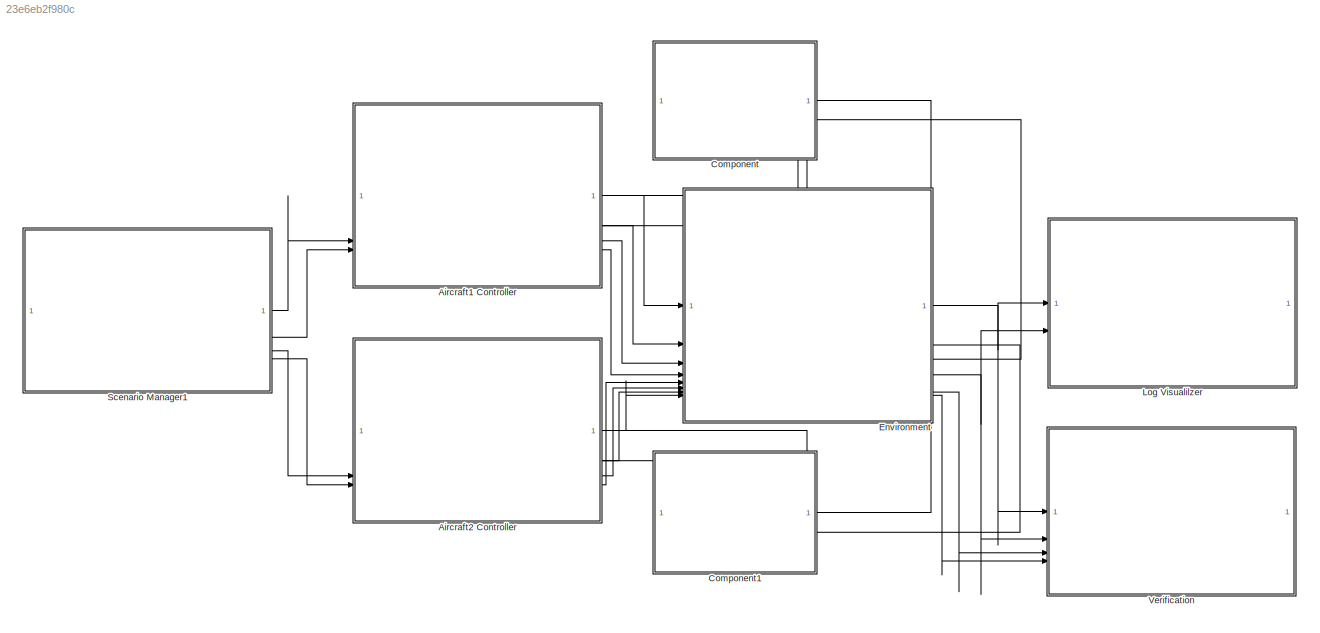
MODEL slx_23e6eb2f980c
KIND model
CONFIG AbsTol = auto
CONFIG EnableMultiTasking = off
CONFIG FixedStep = 0.1
CONFIG MaxStep = auto
CONFIG MinStep = auto
CONFIG RelTol = 1e-3
CONFIG SampleTimeConstraint = Unconstrained
CONFIG SolverName = FixedStepAuto
CONFIG StartTime = 0.0
CONFIG StopTime = 100.0
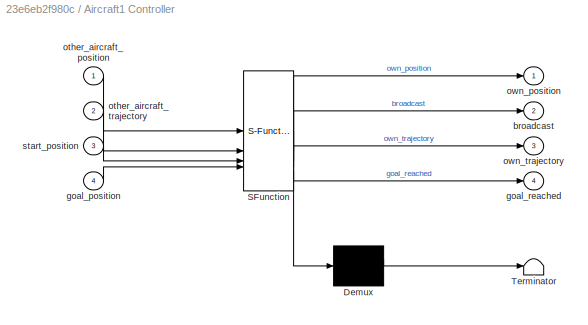
BLOCK [SubSystem] Aircraft1 Controller
  ErrorFcn = Stateflow.Translate.translate
  PermitHierarchicalResolution = ExplicitOnly
  PortSchema = {"entries":[{"content":{"headerSize":26,"margin":15,"minimumSpacing":25,"sides":[{"content":{"connectorIds":["In3","In4"]},"type":"ConnectorPlacement.EquallySpacedRectSide","uuid":"1f55804f-7089-4bd3-b638-e4b9c8b42ca4"},{"content":{"connectorIds":["In1","In2","Out1","Out2","Out3","Out4"],"side":"RIGHT"},"type":"ConnectorPlacement.EquallySpacedRectSide","uuid":"b3c2471c-8380-46f0-98ab-243070185840"...<+309ch>
  SFBlockType = Chart
  TreatAsAtomicUnit = on
BLOCK [Demux] Aircraft1 Controller/ Demux 
  Outputs = 1
BLOCK [S-Function] Aircraft1 Controller/ SFunction 
  EnableBusSupport = on
  FunctionName = sf_sfun
  PortCounts = [4 5]
  SFcnIsStateOwnerBlock = off
  SFunctionDeploymentMode = off
  Tag = Stateflow S-Function 3
BLOCK [Terminator] Aircraft1 Controller/ Terminator 
BLOCK [Outport] Aircraft1 Controller/broadcast
  Port = 2
BLOCK [Inport] Aircraft1 Controller/goal_position
  Port = 4
BLOCK [Outport] Aircraft1 Controller/goal_reached
  Port = 4
BLOCK [Inport] Aircraft1 Controller/other_aircraft_position
BLOCK [Inport] Aircraft1 Controller/other_aircraft_trajectory
  Port = 2
BLOCK [Outport] Aircraft1 Controller/own_position
BLOCK [Outport] Aircraft1 Controller/own_trajectory
  Port = 3
BLOCK [Inport] Aircraft1 Controller/start_position
  Port = 3
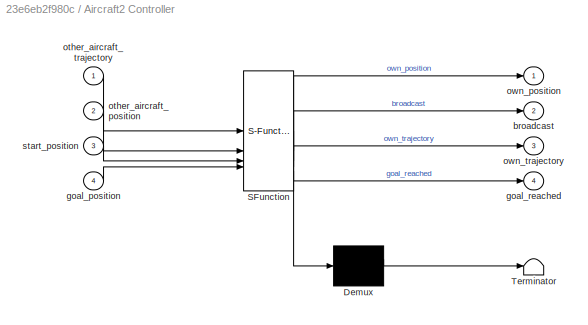
BLOCK [SubSystem] Aircraft2 Controller
  ErrorFcn = Stateflow.Translate.translate
  PermitHierarchicalResolution = ExplicitOnly
  PortSchema = {"entries":[{"content":{"headerSize":26,"margin":15,"minimumSpacing":25,"sides":[{"content":{"connectorIds":["In4","In3"]},"type":"ConnectorPlacement.EquallySpacedRectSide","uuid":"1f55804f-7089-4bd3-b638-e4b9c8b42ca4"},{"content":{"connectorIds":["Out4","Out3","Out2","Out1","In1","In2"],"side":"RIGHT"},"type":"ConnectorPlacement.EquallySpacedRectSide","uuid":"b3c2471c-8380-46f0-98ab-243070185840"...<+309ch>
  SFBlockType = Chart
  TreatAsAtomicUnit = on
BLOCK [Demux] Aircraft2 Controller/ Demux 
  Outputs = 1
BLOCK [S-Function] Aircraft2 Controller/ SFunction 
  EnableBusSupport = on
  FunctionName = sf_sfun
  PortCounts = [4 5]
  SFcnIsStateOwnerBlock = off
  SFunctionDeploymentMode = off
  Tag = Stateflow S-Function 1
BLOCK [Terminator] Aircraft2 Controller/ Terminator 
BLOCK [Outport] Aircraft2 Controller/broadcast
  Port = 2
BLOCK [Inport] Aircraft2 Controller/goal_position
  Port = 4
BLOCK [Outport] Aircraft2 Controller/goal_reached
  Port = 4
BLOCK [Inport] Aircraft2 Controller/other_aircraft_position
  Port = 2
BLOCK [Inport] Aircraft2 Controller/other_aircraft_trajectory
BLOCK [Outport] Aircraft2 Controller/own_position
BLOCK [Outport] Aircraft2 Controller/own_trajectory
  Port = 3
BLOCK [Inport] Aircraft2 Controller/start_position
  Port = 3
BLOCK [ModelReference] Component
  ModelNameDialog = MemoryBlock.slx
  ModelReferenceVersion = 1.4
  PortSchema = {"entries":[{"content":{"headerSize":38,"margin":15,"minimumSpacing":25,"sides":[{"content":{"connectorIds":["Out1","Out2"]},"type":"ConnectorPlacement.EquallySpacedRectSide","uuid":"1f55804f-7089-4bd3-b638-e4b9c8b42ca4"},{"content":{"connectorIds":["In1","In2"],"side":"RIGHT"},"type":"ConnectorPlacement.EquallySpacedRectSide","uuid":"b3c2471c-8380-46f0-98ab-243070185840"},{"content":{"side":"TOP"...<+409ch>
BLOCK [ModelReference] Component1
  ModelNameDialog = MemoryBlock
  ModelReferenceVersion = 1.4
  PortSchema = {"entries":[{"content":{"headerSize":38,"margin":15,"minimumSpacing":25,"sides":[{"content":{"connectorIds":["Out2","Out1"]},"type":"ConnectorPlacement.EquallySpacedRectSide","uuid":"1f55804f-7089-4bd3-b638-e4b9c8b42ca4"},{"content":{"connectorIds":["In2","In1"],"side":"RIGHT"},"type":"ConnectorPlacement.EquallySpacedRectSide","uuid":"b3c2471c-8380-46f0-98ab-243070185840"},{"content":{"side":"TOP"...<+409ch>
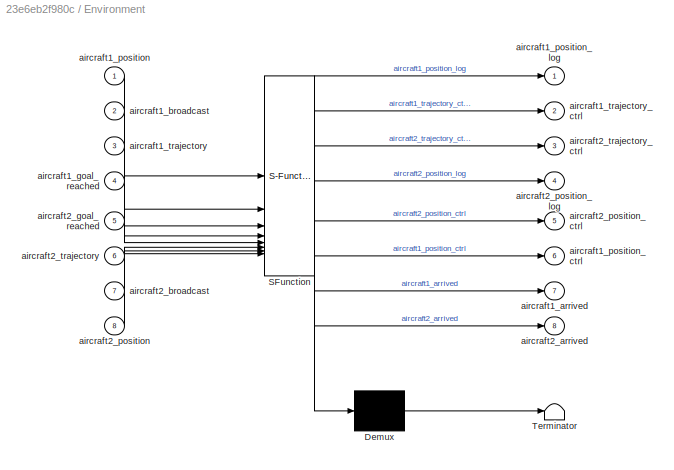
BLOCK [SubSystem] Environment
  ErrorFcn = Stateflow.Translate.translate
  PermitHierarchicalResolution = ExplicitOnly
  PortSchema = {"entries":[{"content":{"headerSize":26,"margin":15,"minimumSpacing":25,"sides":[{"content":{"connectorIds":["In1","In2","In3","In4","In5","In6","In7","In8"]},"type":"ConnectorPlacement.EquallySpacedRectSide","uuid":"1f55804f-7089-4bd3-b638-e4b9c8b42ca4"},{"content":{"connectorIds":["Out1","Out4","Out7","Out8"],"side":"RIGHT"},"type":"ConnectorPlacement.EquallySpacedRectSide","uuid":"b3c2471c-8380...<+521ch>
  SFBlockType = Chart
  TreatAsAtomicUnit = on
BLOCK [Demux] Environment/ Demux 
  Outputs = 1
BLOCK [S-Function] Environment/ SFunction 
  EnableBusSupport = on
  FunctionName = sf_sfun
  PortCounts = [8 9]
  SFcnIsStateOwnerBlock = off
  SFunctionDeploymentMode = off
  Tag = Stateflow S-Function 2
BLOCK [Terminator] Environment/ Terminator 
BLOCK [Outport] Environment/aircraft1_arrived
  Port = 7
BLOCK [Inport] Environment/aircraft1_broadcast
  Port = 2
BLOCK [Inport] Environment/aircraft1_goal_reached
  Port = 4
BLOCK [Inport] Environment/aircraft1_position
BLOCK [Outport] Environment/aircraft1_position_ctrl
  Port = 6
BLOCK [Outport] Environment/aircraft1_position_log
BLOCK [Inport] Environment/aircraft1_trajectory
  Port = 3
BLOCK [Outport] Environment/aircraft1_trajectory_ctrl
  Port = 2
BLOCK [Outport] Environment/aircraft2_arrived
  Port = 8
BLOCK [Inport] Environment/aircraft2_broadcast
  Port = 7
BLOCK [Inport] Environment/aircraft2_goal_reached
  Port = 5
BLOCK [Inport] Environment/aircraft2_position
  Port = 8
BLOCK [Outport] Environment/aircraft2_position_ctrl
  Port = 5
BLOCK [Outport] Environment/aircraft2_position_log
  Port = 4
BLOCK [Inport] Environment/aircraft2_trajectory
  Port = 6
BLOCK [Outport] Environment/aircraft2_trajectory_ctrl
  Port = 3
BLOCK [ModelReference] Log Visualilzer
  ModelNameDialog = LogVisualilzer
  ModelReferenceVersion = 1.7
  PortSchema = {"entries":[{"content":{"headerSize":38,"margin":15,"minimumSpacing":25,"sides":[{"content":{"connectorIds":["In1","In2"]},"type":"ConnectorPlacement.EquallySpacedRectSide","uuid":"1f55804f-7089-4bd3-b638-e4b9c8b42ca4"},{"content":{"side":"RIGHT"},"type":"ConnectorPlacement.EquallySpacedRectSide","uuid":"b3c2471c-8380-46f0-98ab-243070185840"},{"content":{"side":"TOP"},"type":"ConnectorPlacement.Eq...<+252ch>
BLOCK [ModelReference] Scenario Manager1
  ModelNameDialog = ScenarioManager1.slx
  ModelReferenceVersion = 1.20
  PortSchema = {"entries":[{"content":{"headerSize":38,"margin":15,"minimumSpacing":25,"sides":[{"content":{},"type":"ConnectorPlacement.EquallySpacedRectSide","uuid":"1f55804f-7089-4bd3-b638-e4b9c8b42ca4"},{"content":{"connectorIds":["Out1","Out2","Out4","Out3"],"side":"RIGHT"},"type":"ConnectorPlacement.EquallySpacedRectSide","uuid":"b3c2471c-8380-46f0-98ab-243070185840"},{"content":{"side":"TOP"},"type":"Conn...<+269ch>
BLOCK [ModelReference] Verification
  ModelNameDialog = Verification
  ModelReferenceVersion = 1.8
  PortSchema = {"entries":[{"content":{"headerSize":38,"margin":15,"minimumSpacing":25,"sides":[{"content":{"connectorIds":["In1","In2","In3","In4"]},"type":"ConnectorPlacement.EquallySpacedRectSide","uuid":"10c170e3-5d79-4eda-90c6-d87a95188a44"},{"content":{"side":"RIGHT"},"type":"ConnectorPlacement.EquallySpacedRectSide","uuid":"ea2fd0a6-7ce8-495f-a83e-fe6cf76b2057"},{"content":{"side":"TOP"},"type":"Connector...<+264ch>
LINE Aircraft1 Controller:1 -> Environment:1
LINE Aircraft1 Controller:2 -> Environment:2
LINE Aircraft1 Controller:3 -> Environment:3
LINE Aircraft1 Controller:4 -> Environment:4
LINE Aircraft2 Controller:1 -> Environment:8
LINE Aircraft2 Controller:2 -> Environment:7
LINE Aircraft2 Controller:3 -> Environment:6
LINE Aircraft2 Controller:4 -> Environment:5
LINE Component1:1 -> Aircraft2 Controller:2
LINE Component1:2 -> Aircraft2 Controller:1
LINE Component:1 -> Aircraft1 Controller:1
LINE Component:2 -> Aircraft1 Controller:2
NET Environment:1 -> Log Visualilzer:1, Verification:1
LINE Environment:2 -> Component1:2
LINE Environment:3 -> Component:2
NET Environment:4 -> Log Visualilzer:2, Verification:2
LINE Environment:5 -> Component:1
LINE Environment:6 -> Component1:1
LINE Environment:7 -> Verification:3
LINE Environment:8 -> Verification:4
LINE Scenario Manager1:1 -> Aircraft1 Controller:3
LINE Scenario Manager1:2 -> Aircraft1 Controller:4
LINE Scenario Manager1:3 -> Aircraft2 Controller:3
LINE Scenario Manager1:4 -> Aircraft2 Controller:4
note: NET lines group one-source signal fan-out (src -> all destinations, sorted); 1:1 wires keep LINE
CHART Aircraft2 Controller states=9 transitions=23
  STATE_LABEL 'Idle\nduring:\n  own_position_dot(1) = 0;\n  own_position_dot(2) = 0;\n  broadcast = true;'
  STATE_LABEL 'CombsDelay\nduring:\n  own_position_dot(1) = 0;\n  own_position_dot(2) = 0;\n  broadcast = false;'
  STATE_LABEL 'VerticalMovement\nduring:\n  own_position_dot(2) = sign(goal_position(2) - own_position(2));'
  STATE_LABEL 'HorizontalMovement\nduring:\n  own_position_dot(1) = sign(goal_position(1) - own_position(1));'
  STATE_LABEL 'CorrectionManager\nduring:\n  own_position_dot(1) = 0;\n  own_position_dot(2) = 0;\n  broadcast = true;'
  STATE_LABEL 'HorizontalHeadOn_Side_CollisionAvoidance_VerticalMovement\nduring:\n  own_position_dot(1) = own_trajectory(2);\n  own_position_dot(2) = -own_trajectory(1);\n'
  STATE_LABEL 'VerticalHeadOn_CollisionAvoidance_HorizontalMovement\nduring:\n  own_position_dot(1) = own_trajectory(2);\n  own_position_dot(2) = -own_trajectory(1);'
  STATE_LABEL 'VerticalHeadOnCollisionAvoidanc_VerticalMovement\nduring:\n  own_position_dot(1) = own_trajectory(1);\n  own_position_dot(2) = own_trajectory(2);'
  STATE_LABEL 'HeadButt_CollisionAvoidance\nduring:\n  own_position_dot(1) = -other_aircraft_trajectory(1);\n  own_position_dot(2) = -other_aircraft_trajectory(2);\n'
CHART Environment states=1 transitions=3
  STATE_LABEL 'LogPass\nduring:\n  aircraft1_position_log = aircraft1_position;\n  aircraft2_position_log = aircraft2_position;\n  aircraft1_arrived = aircraft1_goal_reached;\n  aircraft2_arrived = aircraft2_goal_reached;'
CHART Aircraft1 Controller states=9 transitions=23
  STATE_LABEL 'Idle\nduring:\n  own_position_dot(1) = 0;\n  own_position_dot(2) = 0;\n  broadcast = true;'
  STATE_LABEL 'CombsDelay\nduring:\n  own_position_dot(1) = 0;\n  own_position_dot(2) = 0;\n  broadcast = false;'
  STATE_LABEL 'VerticalMovement\nduring:\n  own_position_dot(2) = sign(goal_position(2) - own_position(2));'
  STATE_LABEL 'HorizontalMovement\nduring:\n  own_position_dot(1) = sign(goal_position(1) - own_position(1));'
  STATE_LABEL 'CorrectionManager\nduring:\n  own_position_dot(1) = 0;\n  own_position_dot(2) = 0;\n  broadcast = true;'
  STATE_LABEL 'HorizontalHeadOn_Side_CollisionAvoidance_VerticalMovement\nduring:\n  own_position_dot(1) = own_trajectory(2);\n  own_position_dot(2) = -own_trajectory(1);\n'
  STATE_LABEL 'VerticalHeadOn_CollisionAvoidance_HorizontalMovement\nduring:\n  own_position_dot(1) = own_trajectory(2);\n  own_position_dot(2) = -own_trajectory(1);'
  STATE_LABEL 'VerticalHeadOnCollisionAvoidanc_VerticalMovement\nduring:\n  own_position_dot(1) = own_trajectory(1);\n  own_position_dot(2) = own_trajectory(2);'
  STATE_LABEL 'HeadButt_CollisionAvoidance\nduring:\n  own_position_dot(1) = -other_aircraft_trajectory(1);\n  own_position_dot(2) = -other_aircraft_trajectory(2);\n'
CHART  states=0 transitions=0
CHART  states=0 transitions=0
CHART  states=0 transitions=0
